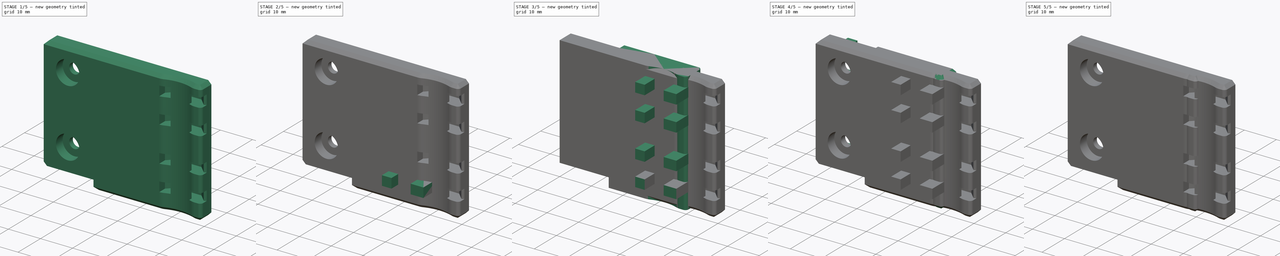
[diagram: build sequence overview — one tinted view per stage of 5, left to right]
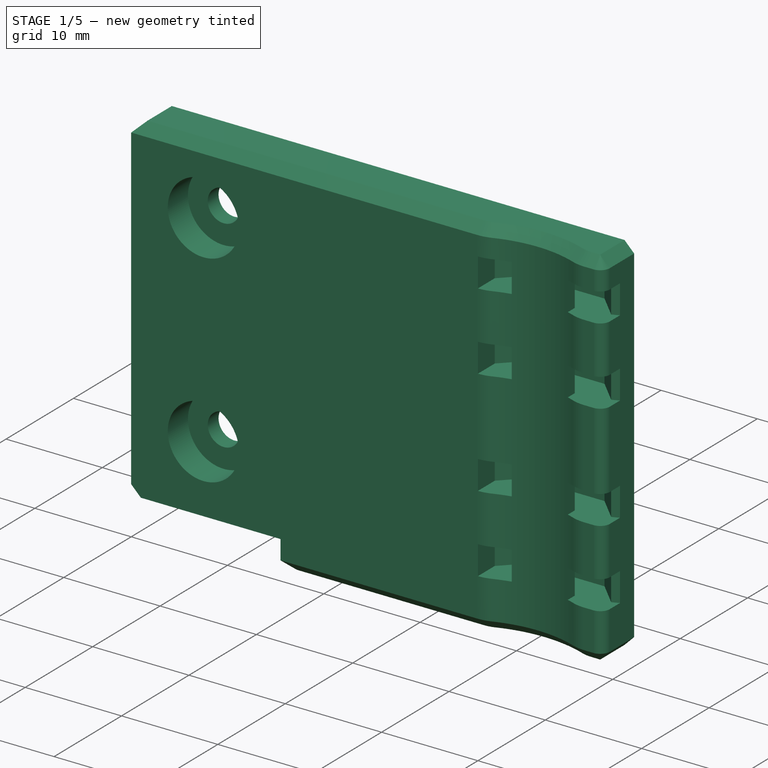
[diagram: stage 1 of 5 — iso view after this stage's code; geometry added in this stage tinted green]
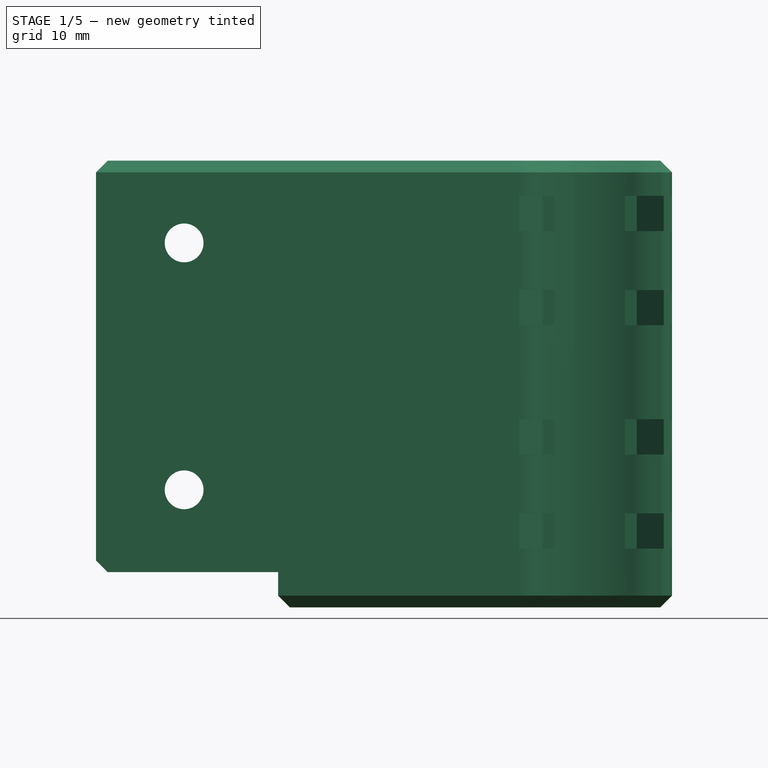
[diagram: stage 1 of 5 — front view after this stage's code; geometry added in this stage tinted green]
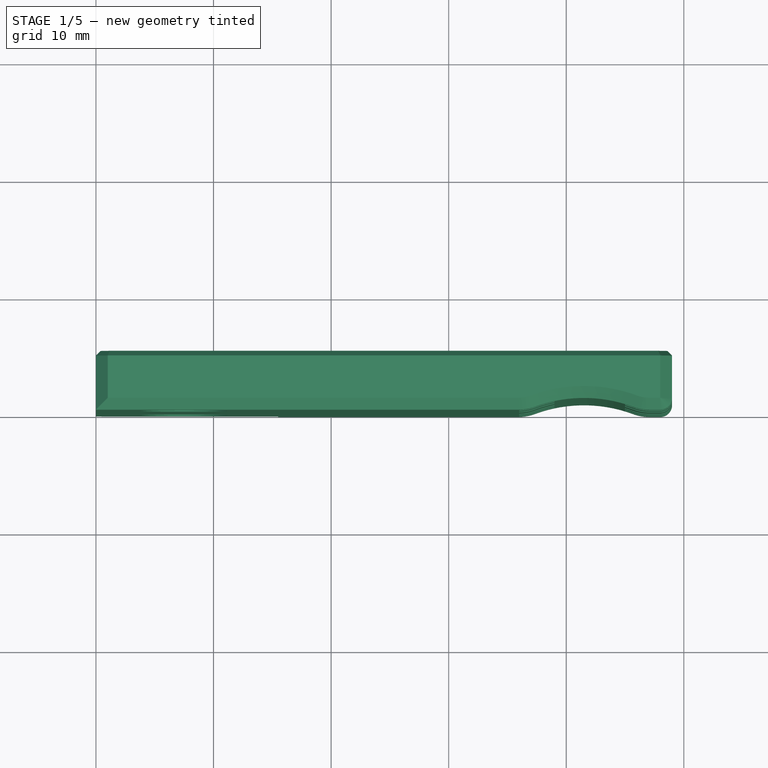
[diagram: stage 1 of 5 — top view after this stage's code; geometry added in this stage tinted green]
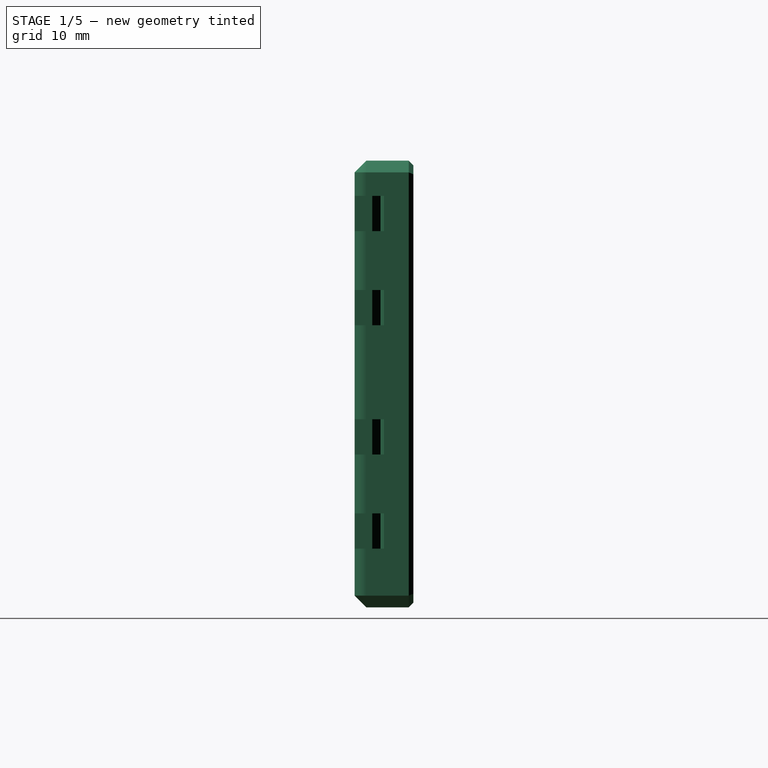
[diagram: stage 1 of 5 — right view after this stage's code; geometry added in this stage tinted green]
FCSTD DOCUMENT  (FreeCAD 0.19R24291 (Git))
Label: bed-cable-holder-1515
License: Other
LicenseURL: GPL3
objects: Sketcher::SketchObject×7, PartDesign::Body×5, PartDesign::Pocket×4, Part::Box×4, Part::Feature×4, PartDesign::Pad×3, PartDesign::Chamfer×3, PartDesign::FeatureBase×3, Part::Cut×3, PartDesign::Fillet×2, Part::MultiFuse×2, Part::Chamfer×2, Part::Refine×2, Part::MultiCommon×2
note: 58 computed .brp shape members not serialized (recipe doc carries the construction recipe); baked Part::Feature solids carry a one-line shape summary decoded from their .brp

FEATURE [Part::Feature] Chamfer003002001
  shape: bbox 40 x 5 x 38 mm, 109 faces (baked)
FEATURE [Part::Box] Box001  label="Cube001"
  AttacherType = Attacher::AttachEngine3D
  Height = 38
  Length = 15
  Placement = pos=(26,-2,0) rot=(0,0,1;0rad)
  Width = 10
FEATURE [Part::Box] Box002  label="Cube002"
  AttacherType = Attacher::AttachEngine3D
  Height = 38
  Length = 9
  Placement = pos=(17,-2,0) rot=(0,0,1;0rad)
  Width = 10
FEATURE [Part::Feature] Chamfer003002002
  shape: bbox 40 x 5 x 38 mm, 109 faces (baked)
FEATURE [Part::Feature] Chamfer003002003
  shape: bbox 40 x 5 x 38 mm, 109 faces (baked)
FEATURE [Part::Box] Box003  label="Cube003"
  AttacherType = Attacher::AttachEngine3D
  Height = 38
  Length = 15
  Placement = pos=(26,-2,0) rot=(0,0,1;0rad)
  Width = 10
FEATURE [Part::MultiCommon] Common
  Placement = pos=(9,0,0) rot=(0,0,1;0rad)
  Shapes = -> [Box001,Chamfer003002001]
FEATURE [Part::MultiCommon] Common001
  Placement = pos=(9,0,0) rot=(0,0,1;0rad)
  Shapes = -> [Box002,Chamfer003002002]
FEATURE [Part::Cut] Cut002
  Base = -> Chamfer003002003
  Tool = -> Box003
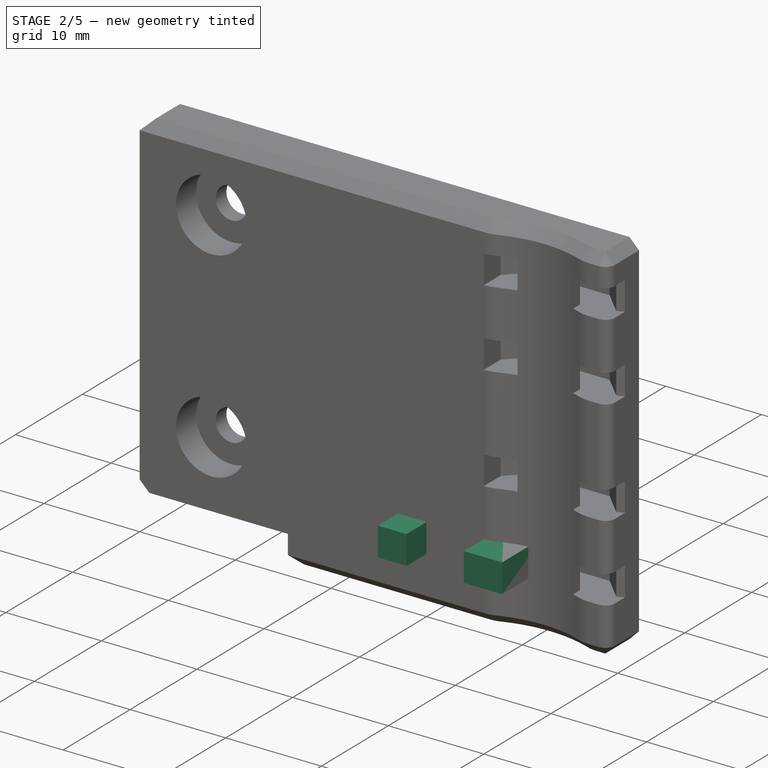
[diagram: stage 2 of 5 — iso view after this stage's code; geometry added in this stage tinted green]
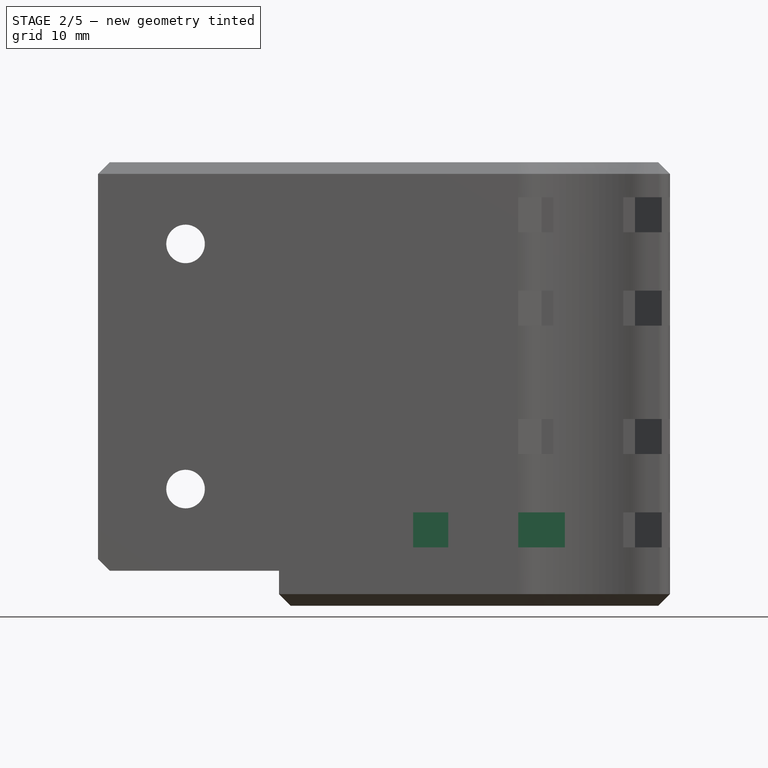
[diagram: stage 2 of 5 — front view after this stage's code; geometry added in this stage tinted green]
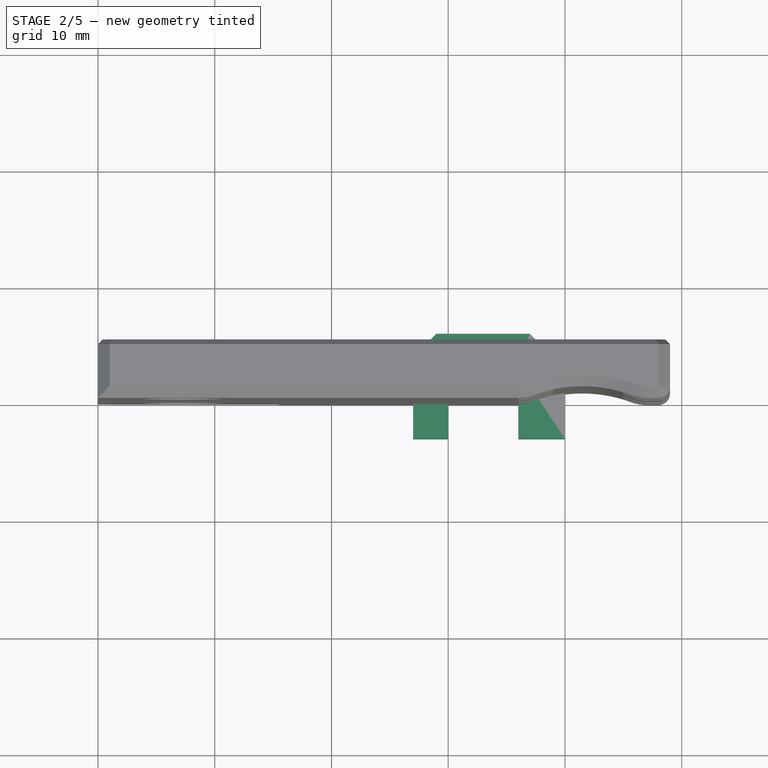
[diagram: stage 2 of 5 — top view after this stage's code; geometry added in this stage tinted green]
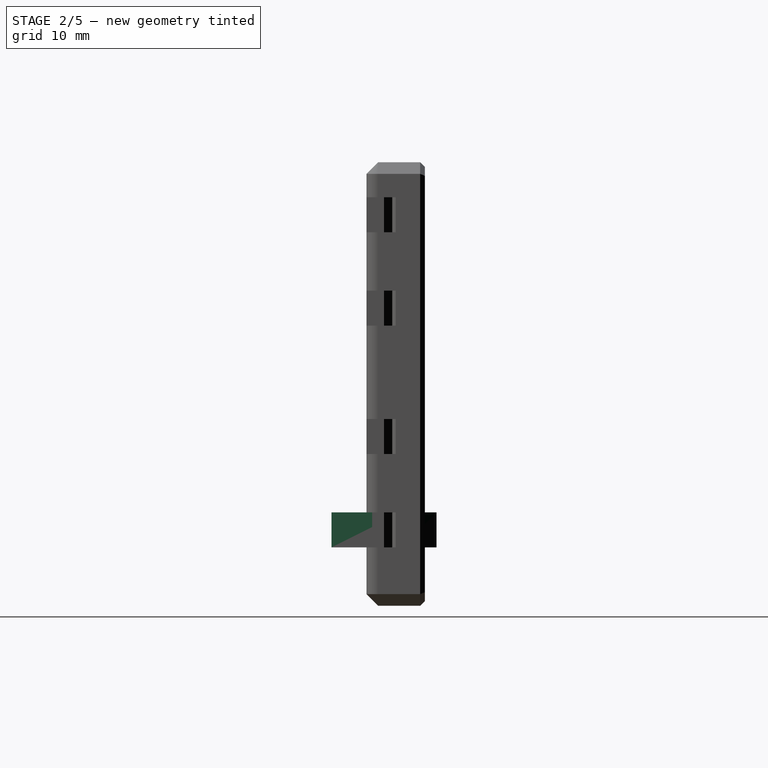
[diagram: stage 2 of 5 — right view after this stage's code; geometry added in this stage tinted green]
FEATURE [PartDesign::Body] Body
  Group = -> [Sketch,Pad,Sketch001,Pocket,Sketch002,Pocket001,Fillet,Fillet001,Sketch003,Pocket002,Sketch004,Pocket003,Chamfer,Chamfer001,Sketch005,Pad001,Chamfer002]
  Origin = -> Origin
  Tip = -> Chamfer002
FEATURE [Sketcher::SketchObject] Sketch006
  FullyConstrained = false
  MapMode = 5
  Support = -> [XY_Plane001]
  sketch-geometry (12):
    g0: LineSegment StartX=27 StartY=-3 StartZ=0 EndX=27 EndY=4 EndZ=0
    g1: LineSegment StartX=27 StartY=4 StartZ=0 EndX=29 EndY=6 EndZ=0
    g2: LineSegment StartX=29 StartY=6 StartZ=0 EndX=37 EndY=6 EndZ=0
    g3: LineSegment StartX=37 StartY=6 StartZ=0 EndX=40 EndY=3 EndZ=0
    g4: LineSegment StartX=40 StartY=3 StartZ=0 EndX=40 EndY=-3 EndZ=0
    g5: LineSegment StartX=40 StartY=-3 StartZ=0 EndX=36 EndY=-3 EndZ=0
    g6: LineSegment StartX=36 StartY=-3 StartZ=0 EndX=36 EndY=3 EndZ=0
    g7: LineSegment StartX=36 StartY=3 StartZ=0 EndX=35 EndY=4 EndZ=0
    g8: LineSegment StartX=35 StartY=4 StartZ=0 EndX=31 EndY=4 EndZ=0
    g9: LineSegment StartX=31 StartY=4 StartZ=0 EndX=30 EndY=3 EndZ=0
    g10: LineSegment StartX=30 StartY=3 StartZ=0 EndX=30 EndY=-3 EndZ=0
    g11: LineSegment StartX=30 StartY=-3 StartZ=0 EndX=27 EndY=-3 EndZ=0
  constraints (20):
    c: Vertical(g0)
    c: Coincident(g0,g1)
    c: Coincident(g1,g2)
    c: Horizontal(g2)
    c: Coincident(g2,g3)
    c: Coincident(g3,g4)
    c: Vertical(g4)
    c: Coincident(g4,g5)
    c: Horizontal(g5)
    c: Coincident(g5,g6)
    c: Vertical(g6)
    c: Coincident(g6,g7)
    c: Coincident(g7,g8)
    c: Horizontal(g8)
    c: Coincident(g8,g9)
    c: Coincident(g9,g10)
    c: Vertical(g10)
    c: Coincident(g10,g11)
    c: Coincident(g11,g0)
    c: Horizontal(g11)
FEATURE [PartDesign::Pad] Pad002
  Direction = (1,1,1)
  Length = 3
  Length2 = 100
  Profile = -> Sketch006
  Type = 0
FEATURE [PartDesign::FeatureBase] Clone
  BaseFeature = -> Body001
  Placement = pos=(0,0,32) rot=(0,0,1;0rad)
FEATURE [PartDesign::Body] Body002
  Group = -> [Clone]
  Origin = -> Origin002
  Placement = pos=(0,0,-8) rot=(0,0,1;0rad)
  Tip = -> Clone
FEATURE [PartDesign::FeatureBase] Clone001
  BaseFeature = -> Body002
  Placement = pos=(0,0,-8) rot=(0,0,1;0rad)
FEATURE [PartDesign::Body] Body003
  Group = -> [Clone001]
  Origin = -> Origin003
  Placement = pos=(0,0,-19) rot=(0,0,1;0rad)
  Tip = -> Clone001
FEATURE [PartDesign::FeatureBase] Clone002
  BaseFeature = -> Body003
  Placement = pos=(0,0,-19) rot=(0,0,1;0rad)
FEATURE [Part::MultiFuse] Fusion001
  Shapes = -> [Cut002,Common001,Common]
FEATURE [Part::Refine] Fusion001001
  Source = -> Fusion001
FEATURE [Part::Feature] Fusion001001001  label="bed-cable-mounter"
  Placement = pos=(0,0,0) rot=(1,0,0;4.71239rad)
  shape: bbox 49 x 38 x 5 mm, 109 faces (baked)
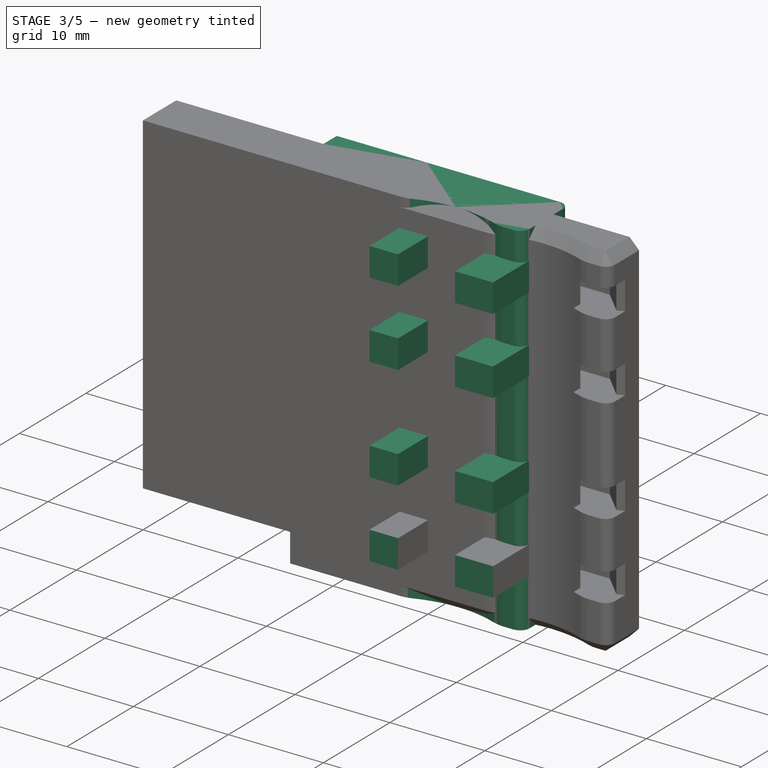
[diagram: stage 3 of 5 — iso view after this stage's code; geometry added in this stage tinted green]
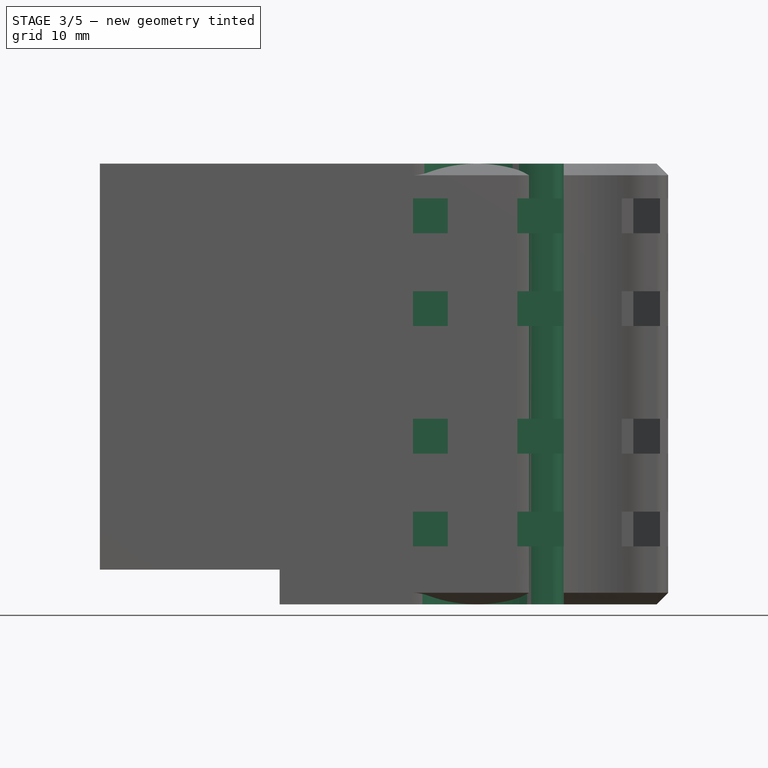
[diagram: stage 3 of 5 — front view after this stage's code; geometry added in this stage tinted green]
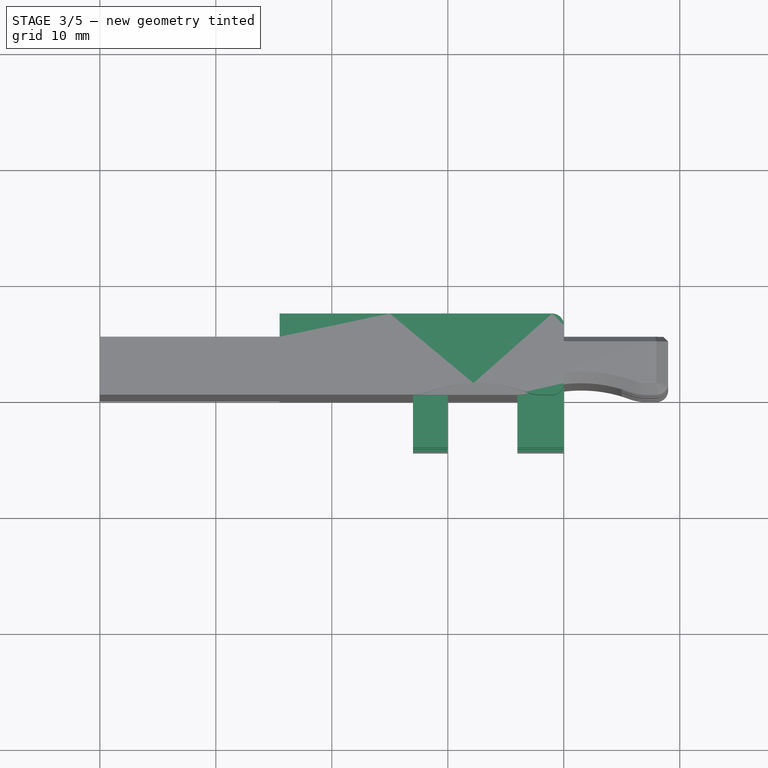
[diagram: stage 3 of 5 — top view after this stage's code; geometry added in this stage tinted green]
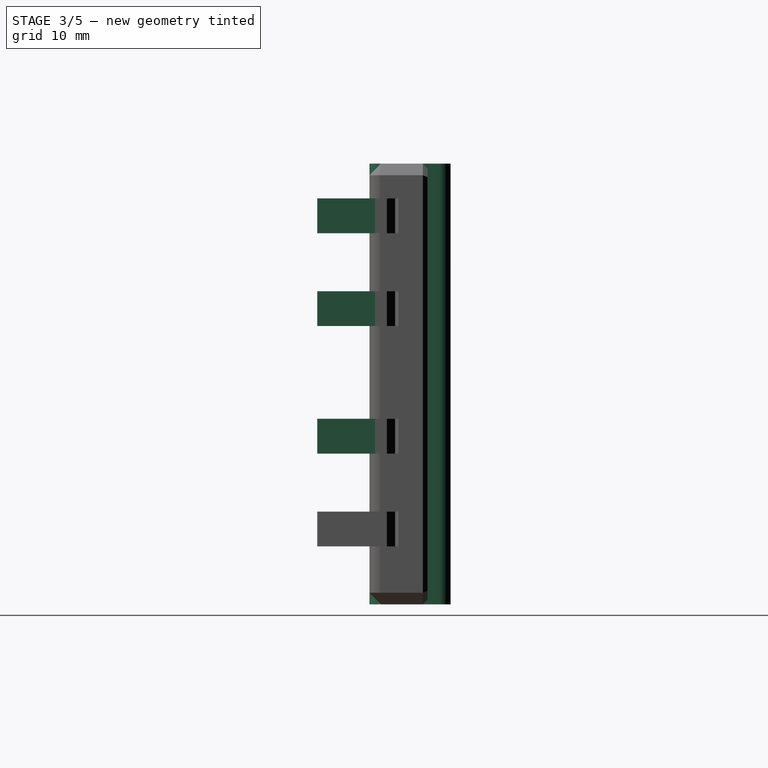
[diagram: stage 3 of 5 — right view after this stage's code; geometry added in this stage tinted green]
FEATURE [Sketcher::SketchObject] Sketch
  FullyConstrained = true
  MapMode = 5
  Support = -> [XY_Plane]
  sketch-geometry (8):
    g0: LineSegment StartX=0 StartY=0 StartZ=0 EndX=0 EndY=5 EndZ=0
    g1: LineSegment StartX=0 StartY=5 StartZ=0 EndX=15.5 EndY=5 EndZ=0
    g2: LineSegment StartX=0 StartY=0 StartZ=0 EndX=25 EndY=0 EndZ=0
    g3: LineSegment StartX=15.5 StartY=5 StartZ=0 EndX=15.5 EndY=7 EndZ=0
    g4: LineSegment StartX=15.5 StartY=7 StartZ=0 EndX=25 EndY=7 EndZ=0
    g5: LineSegment StartX=25 StartY=7 StartZ=0 EndX=40 EndY=7 EndZ=0
    g6: LineSegment StartX=40 StartY=7 StartZ=0 EndX=40 EndY=0 EndZ=0
    g7: LineSegment StartX=25 StartY=0 StartZ=0 EndX=40 EndY=0 EndZ=0
  constraints (23):
    c: Coincident(g-1,g0)
    c: Vertical(g0)
    c: Coincident(g0,g1)
    c: Horizontal(g1)
    c: Coincident(g0,g2)
    c: PointOnObject(g2,g-1)
    c: DistanceX(g1,g1) = 15.5
    c: DistanceY(g0,g0) = 5
    c: DistanceX(g2,g2) = 25
    c: Coincident(g3,g1)
    c: Vertical(g3)
    c: Coincident(g4,g3)
    c: Horizontal(g4)
    c: DistanceX(g4,g4) = 9.5
    c: DistanceY(g3,g3) = 2
    c: Coincident(g5,g4)
    c: Horizontal(g5)
    c: Coincident(g6,g5)
    c: PointOnObject(g6,g-1)
    c: Vertical(g6)
    c: Coincident(g7,g2)
    c: Coincident(g7,g6)
    c: DistanceX(g5,g5) = 15
FEATURE [PartDesign::Pad] Pad
  Direction = (1,1,1)
  Length = 38
  Length2 = 100
  Profile = -> Sketch
  Type = 0
FEATURE [Sketcher::SketchObject] Sketch001
  FullyConstrained = true
  MapMode = 5
  Placement = pos=(0,0,0) rot=(1,0,0;1.5708rad)
  Support = -> [Pad]
  sketch-geometry (4):
    g0: LineSegment StartX=0 StartY=0 StartZ=0 EndX=15.5 EndY=0 EndZ=0
    g1: LineSegment StartX=15.5 StartY=0 StartZ=0 EndX=15.5 EndY=3 EndZ=0
    g2: LineSegment StartX=15.5 StartY=3 StartZ=0 EndX=0 EndY=3 EndZ=0
    g3: LineSegment StartX=0 StartY=3 StartZ=0 EndX=0 EndY=0 EndZ=0
  constraints (11):
    c: Coincident(g0,g1)
    c: Coincident(g1,g2)
    c: Coincident(g2,g3)
    c: Coincident(g3,g0)
    c: Horizontal(g0)
    c: Horizontal(g2)
    c: Vertical(g1)
    c: Vertical(g3)
    c: Coincident(g0,g-1)
    c: DistanceX(g2,g2) = 15.5
    c: DistanceY(g1,g1) = 3
FEATURE [PartDesign::Pocket] Pocket
  BaseFeature = -> Pad
  Length = 5
  Length2 = 100
  Profile = -> Sketch001
  Type = 1
FEATURE [Sketcher::SketchObject] Sketch002
  FullyConstrained = true
  MapMode = 5
  Placement = pos=(0,0,38) rot=(0,0,1;0rad)
  Support = -> [Pocket]
  sketch-geometry (2):
    g0: Circle CenterX=32.5 CenterY=-11 CenterZ=0 NormalX=0 NormalY=0 NormalZ=1 AngleXU=0 Radius=12
    g1: LineSegment StartX=0 StartY=0 StartZ=0 EndX=25 EndY=0 EndZ=0
  constraints (6):
    c: DistanceX(g-1,g0) = 32.5
    c: Coincident(g1,g-1)
    c: PointOnObject(g1,g-1)
    c: DistanceX(g1,g1) = 25
    c: Radius(g0) = 12
    c: DistanceY(g0,g-1) = 11
FEATURE [PartDesign::Pocket] Pocket001
  BaseFeature = -> Pocket
  Length = 5
  Length2 = 100
  Profile = -> Sketch002
  Type = 1
FEATURE [PartDesign::Fillet] Fillet
  Base = -> Pocket001 [Edge26,Edge28]
  BaseFeature = -> Pocket001
  Radius = 4
  SupportTransform = false
FEATURE [PartDesign::Fillet] Fillet001
  Base = -> Fillet [Edge31,Edge34]
  BaseFeature = -> Fillet
  Radius = 1
  SupportTransform = false
FEATURE [PartDesign::Body] Body004
  Group = -> [Clone002]
  Origin = -> Origin004
  Placement = pos=(0,0,8) rot=(0,0,1;0rad)
  Tip = -> Clone002
FEATURE [Part::MultiFuse] Fusion
  Placement = pos=(0,-1.5,0) rot=(0,0,1;0rad)
  Shapes = -> [Body004,Body001,Body002,Body003]
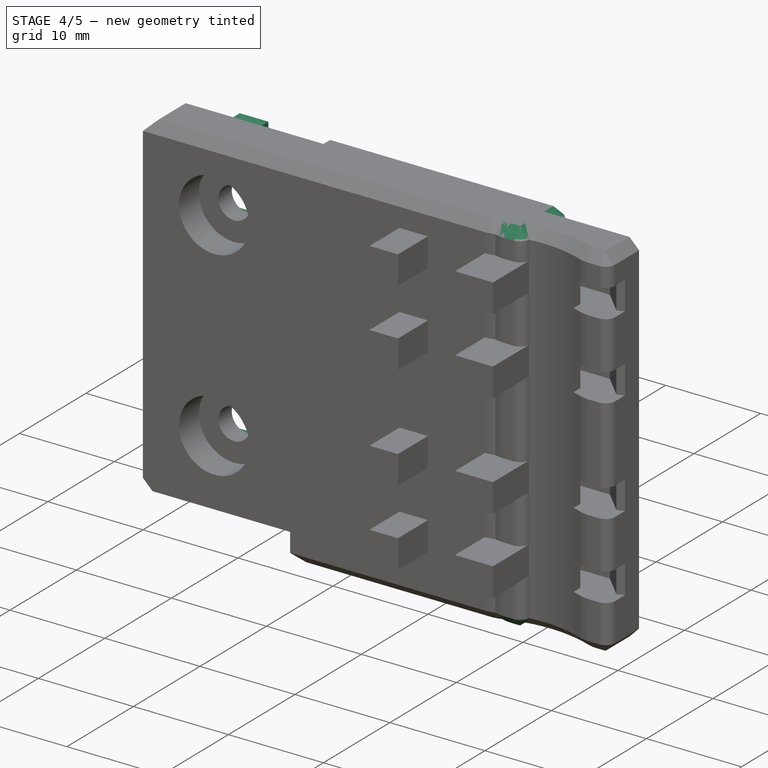
[diagram: stage 4 of 5 — iso view after this stage's code; geometry added in this stage tinted green]
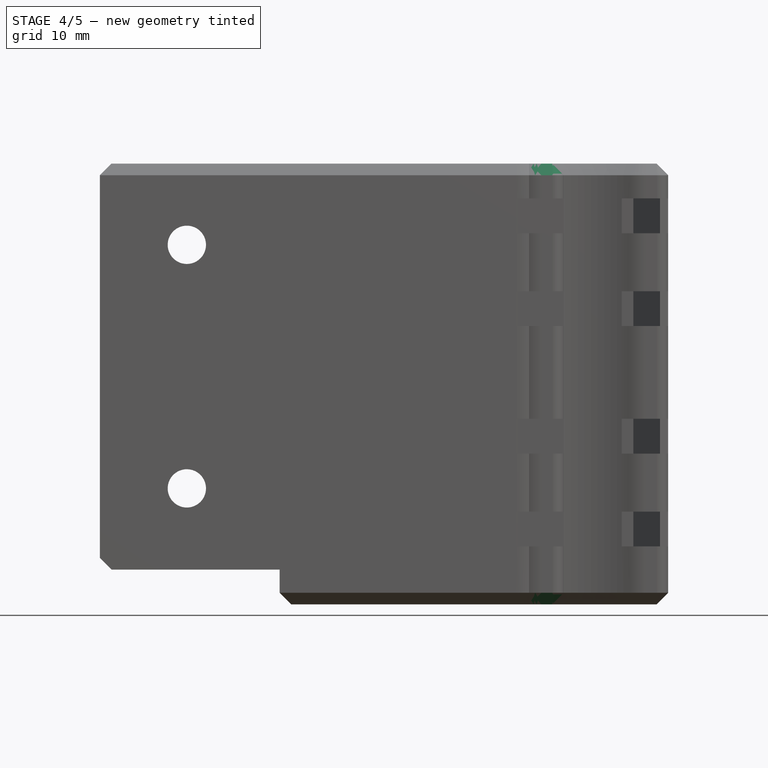
[diagram: stage 4 of 5 — front view after this stage's code; geometry added in this stage tinted green]
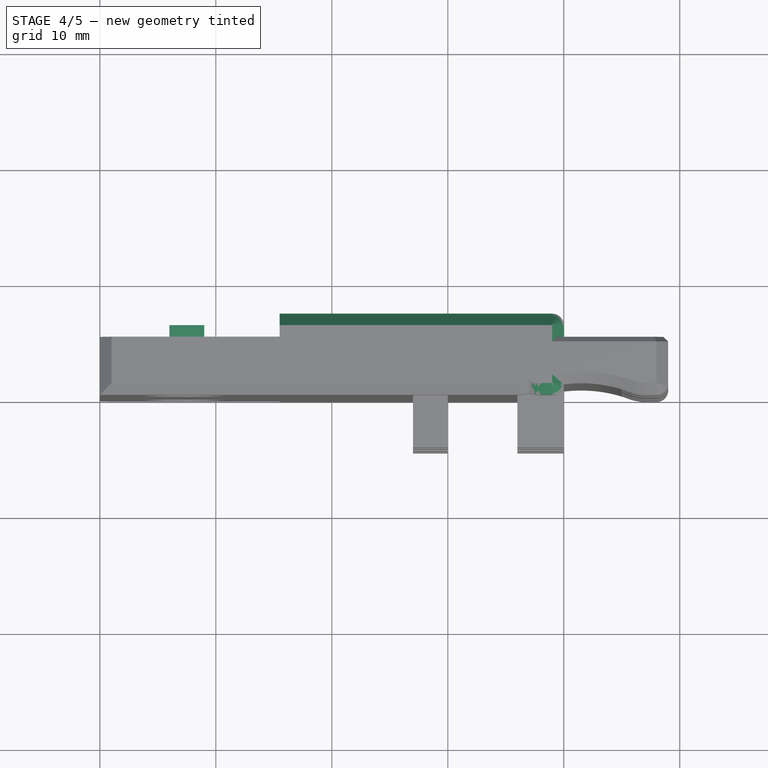
[diagram: stage 4 of 5 — top view after this stage's code; geometry added in this stage tinted green]
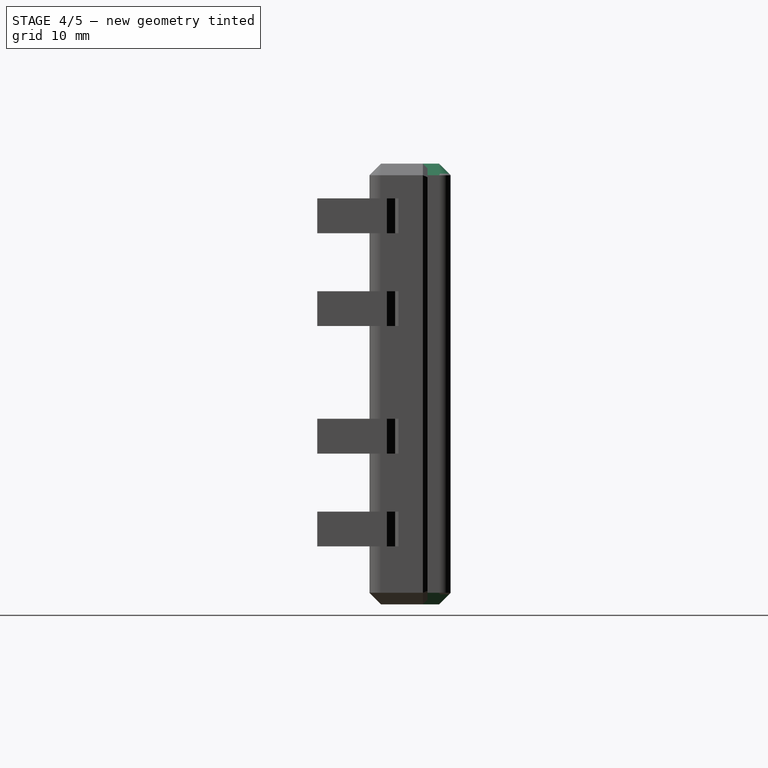
[diagram: stage 4 of 5 — right view after this stage's code; geometry added in this stage tinted green]
FEATURE [Sketcher::SketchObject] Sketch003
  FullyConstrained = true
  MapMode = 5
  Placement = pos=(0,0,0) rot=(1,0,0;1.5708rad)
  Support = -> [Fillet001]
  sketch-geometry (2):
    g0: Circle CenterX=7.5 CenterY=31 CenterZ=0 NormalX=0 NormalY=0 NormalZ=1 AngleXU=0 Radius=1.65
    g1: Circle CenterX=7.5 CenterY=10 CenterZ=0 NormalX=0 NormalY=0 NormalZ=1 AngleXU=0 Radius=1.65
  constraints (6):
    c: DistanceX(g-1,g1) = 7.5
    c: DistanceX(g1,g0) = 0
    c: Radius(g0) = 1.65
    c: Radius(g1) = 1.65
    c: DistanceY(g-1,g1) = 10
    c: DistanceY(g-1,g0) = 31
FEATURE [PartDesign::Pocket] Pocket002
  BaseFeature = -> Fillet001
  Length = 5
  Length2 = 100
  Profile = -> Sketch003
  Type = 1
FEATURE [Sketcher::SketchObject] Sketch004
  FullyConstrained = true
  MapMode = 5
  Placement = pos=(0,0,0) rot=(1,0,0;1.5708rad)
  Support = -> [Pocket002]
  sketch-geometry (2):
    g0: Circle CenterX=7.5 CenterY=31 CenterZ=0 NormalX=0 NormalY=0 NormalZ=1 AngleXU=0 Radius=3.7
    g1: Circle CenterX=7.5 CenterY=10 CenterZ=0 NormalX=0 NormalY=0 NormalZ=1 AngleXU=0 Radius=3.7
  constraints (6):
    c: DistanceX(g0,g1) = 0
    c: DistanceX(g-1,g1) = 7.5
    c: DistanceY(g-1,g1) = 10
    c: DistanceY(g-1,g0) = 31
    c: Radius(g0) = 3.7
    c: Radius(g1) = 3.7
FEATURE [PartDesign::Pocket] Pocket003
  BaseFeature = -> Pocket002
  Length = 3
  Length2 = 100
  Profile = -> Sketch004
  Type = 0
FEATURE [PartDesign::Chamfer] Chamfer
  Angle = 45
  Base = -> Pocket003 [Edge13,Edge45,Edge51]
  BaseFeature = -> Pocket003
  ChamferType = 0
  FlipDirection = false
  Size = 1
  Size2 = 1
  SupportTransform = false
FEATURE [PartDesign::Chamfer] Chamfer001
  Angle = 45
  Base = -> Chamfer [Edge1,Edge40]
  BaseFeature = -> Chamfer
  ChamferType = 0
  FlipDirection = false
  Size = 1
  Size2 = 1
  SupportTransform = false
FEATURE [Sketcher::SketchObject] Sketch005
  FullyConstrained = true
  MapMode = 5
  Placement = pos=(0,5,0) rot=(0,0.707107,0.707107;3.14159rad)
  Support = -> [Chamfer001]
  sketch-geometry (12):
    g0: LineSegment StartX=-9 StartY=38 StartZ=0 EndX=-6 EndY=38 EndZ=0
    g1: LineSegment StartX=-6 StartY=38 StartZ=0 EndX=-6 EndY=33 EndZ=0
    g2: LineSegment StartX=-6 StartY=33 StartZ=0 EndX=-9 EndY=33 EndZ=0
    g3: LineSegment StartX=-9 StartY=33 StartZ=0 EndX=-9 EndY=38 EndZ=0
    g4: LineSegment StartX=-9 StartY=29 StartZ=0 EndX=-6 EndY=29 EndZ=0
    g5: LineSegment StartX=-6 StartY=29 StartZ=0 EndX=-6 EndY=12 EndZ=0
    g6: LineSegment StartX=-6 StartY=12 StartZ=0 EndX=-9 EndY=12 EndZ=0
    g7: LineSegment StartX=-9 StartY=12 StartZ=0 EndX=-9 EndY=29 EndZ=0
    g8: LineSegment StartX=-9 StartY=8 StartZ=0 EndX=-6 EndY=8 EndZ=0
    g9: LineSegment StartX=-6 StartY=8 StartZ=0 EndX=-6 EndY=3 EndZ=0
    g10: LineSegment StartX=-6 StartY=3 StartZ=0 EndX=-9 EndY=3 EndZ=0
    g11: LineSegment StartX=-9 StartY=3 StartZ=0 EndX=-9 EndY=8 EndZ=0
  constraints (36):
    c: Coincident(g0,g1)
    c: Coincident(g1,g2)
    c: Coincident(g2,g3)
    c: Coincident(g3,g0)
    c: Horizontal(g0)
    c: Horizontal(g2)
    c: Vertical(g1)
    c: Vertical(g3)
    c: Coincident(g4,g5)
    c: Coincident(g5,g6)
    c: Coincident(g6,g7)
    c: Coincident(g7,g4)
    c: Horizontal(g4)
    c: Horizontal(g6)
    c: Vertical(g5)
    c: Vertical(g7)
    c: Coincident(g8,g9)
    c: Coincident(g9,g10)
    c: Coincident(g10,g11)
    c: Coincident(g11,g8)
    c: Horizontal(g8)
    c: Horizontal(g10)
    c: Vertical(g9)
    c: Vertical(g11)
    c: DistanceX(g8,g8) = 3
    c: DistanceX(g4,g4) = 3
    c: DistanceX(g0,g0) = 3
    c: DistanceX(g9,g-1) = 6
    c: DistanceX(g5,g8) = 0
    c: DistanceX(g1,g4) = 0
    c: DistanceY(g4,g1) = 4
    c: DistanceY(g8,g5) = 4
    c: DistanceY(g-1,g9) = 3
    c: DistanceY(g11,g11) = 5
    c: DistanceY(g5,g5) = 17
    c: DistanceY(g1,g1) = 5
FEATURE [PartDesign::Pad] Pad001
  BaseFeature = -> Chamfer001
  Direction = (1,1,1)
  Length = 1
  Length2 = 100
  Profile = -> Sketch005
  Type = 0
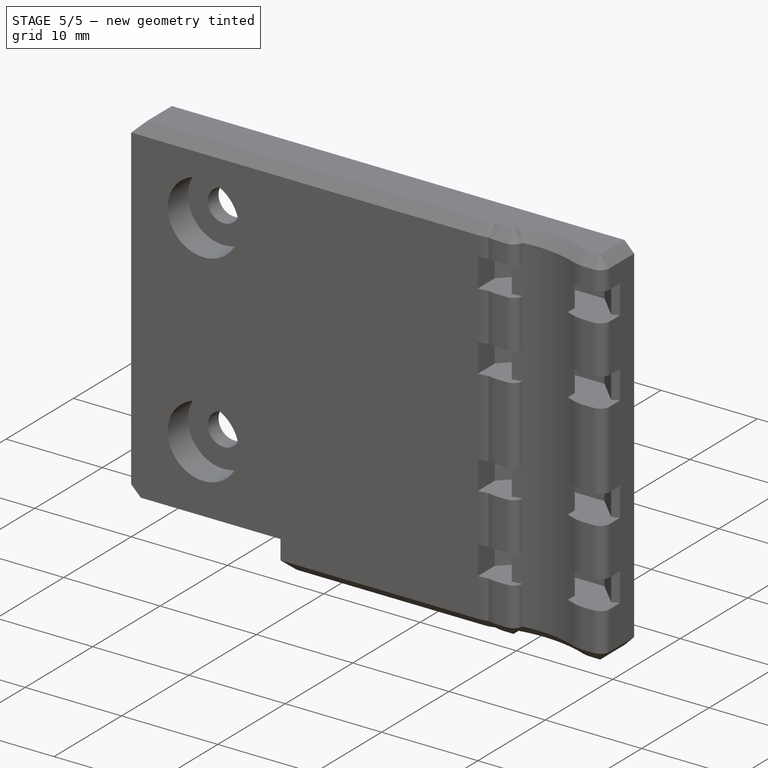
[diagram: stage 5 of 5 — iso view after this stage's code; geometry added in this stage tinted green]
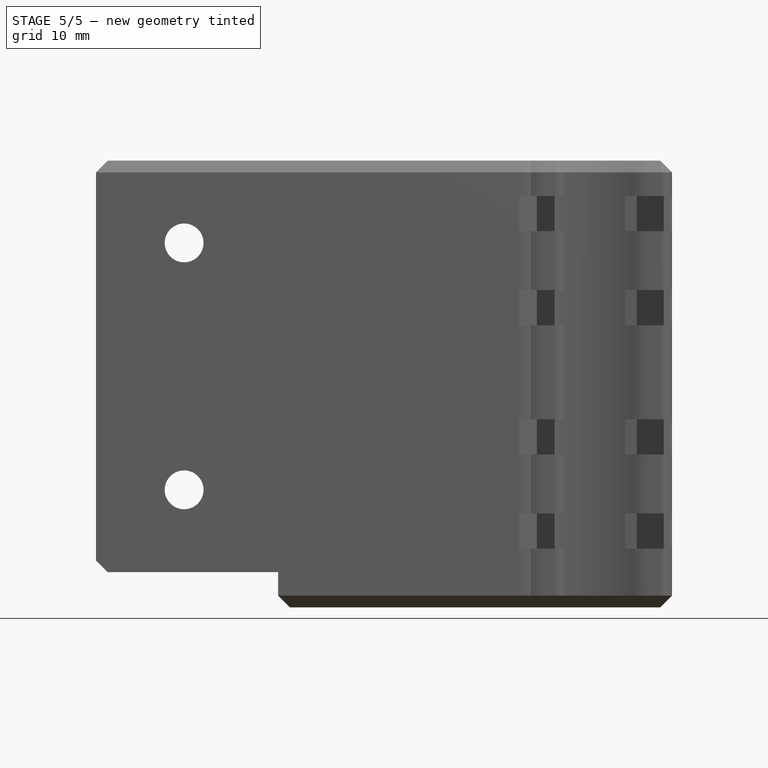
[diagram: stage 5 of 5 — front view after this stage's code; geometry added in this stage tinted green]
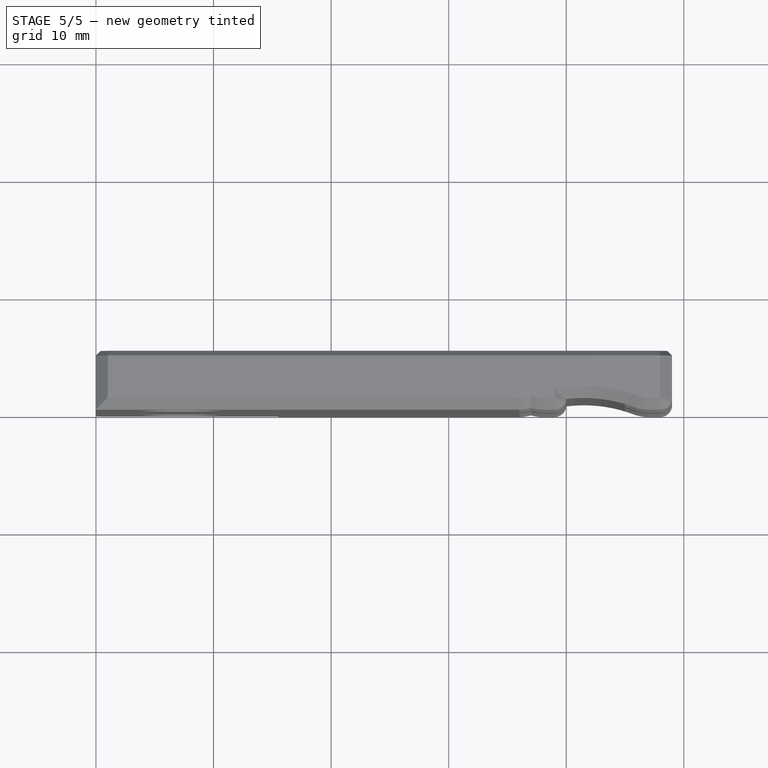
[diagram: stage 5 of 5 — top view after this stage's code; geometry added in this stage tinted green]
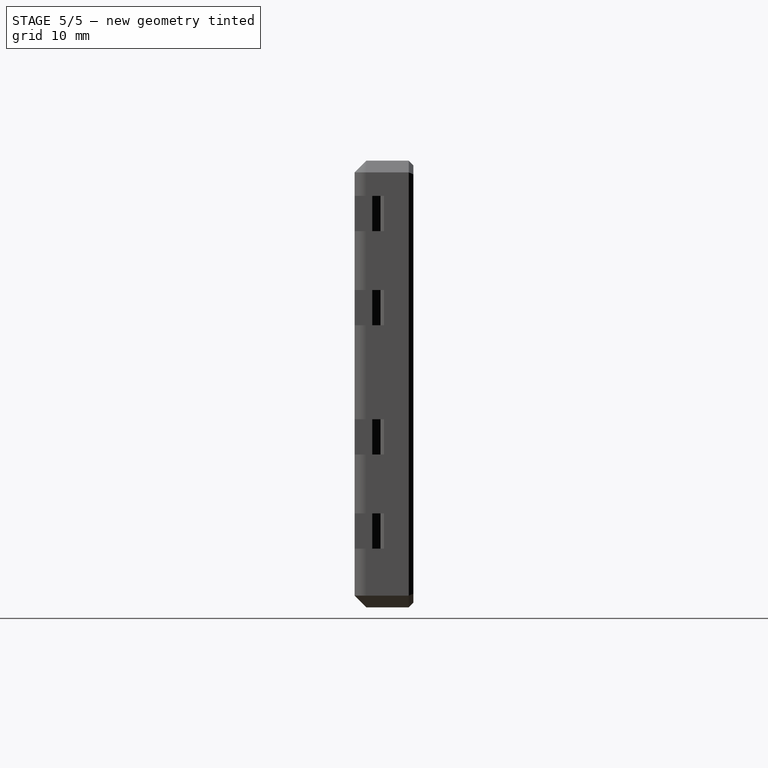
[diagram: stage 5 of 5 — right view after this stage's code; geometry added in this stage tinted green]
FEATURE [PartDesign::Chamfer] Chamfer002
  Angle = 45
  Base = -> Pad001 [Edge93,Edge76,Edge39]
  BaseFeature = -> Pad001
  ChamferType = 0
  FlipDirection = false
  Size = 0.99
  Size2 = 1
  SupportTransform = false
FEATURE [PartDesign::Body] Body001
  Group = -> [Sketch006,Pad002]
  Origin = -> Origin001
  Placement = pos=(0,0,32) rot=(0,0,1;0rad)
  Tip = -> Pad002
FEATURE [Part::Box] Box  label="Cube"
  AttacherType = Attacher::AttachEngine3D
  Height = 38
  Length = 40
  Placement = pos=(0,5,0) rot=(0,0,1;0rad)
  Width = 4
FEATURE [Part::Cut] Cut
  Base = -> Body
  Tool = -> Fusion
FEATURE [Part::Cut] Cut001
  Base = -> Cut
  Tool = -> Box
FEATURE [Part::Chamfer] Chamfer003
  Base = -> Cut001
  Edges = 4 edges r=1: [Edge120,Edge124,Edge128,Edge132]
FEATURE [Part::Refine] Chamfer003001
  Source = -> Chamfer003
FEATURE [Part::Chamfer] Chamfer003002
  Base = -> Chamfer003001
  Edges = 13 edges r=0.4: [Edge4,Edge56,Edge62,Edge212,Edge218,Edge220,Edge224,Edge262,Edge266,Edge268,Edge272,Edge273,Edge274]
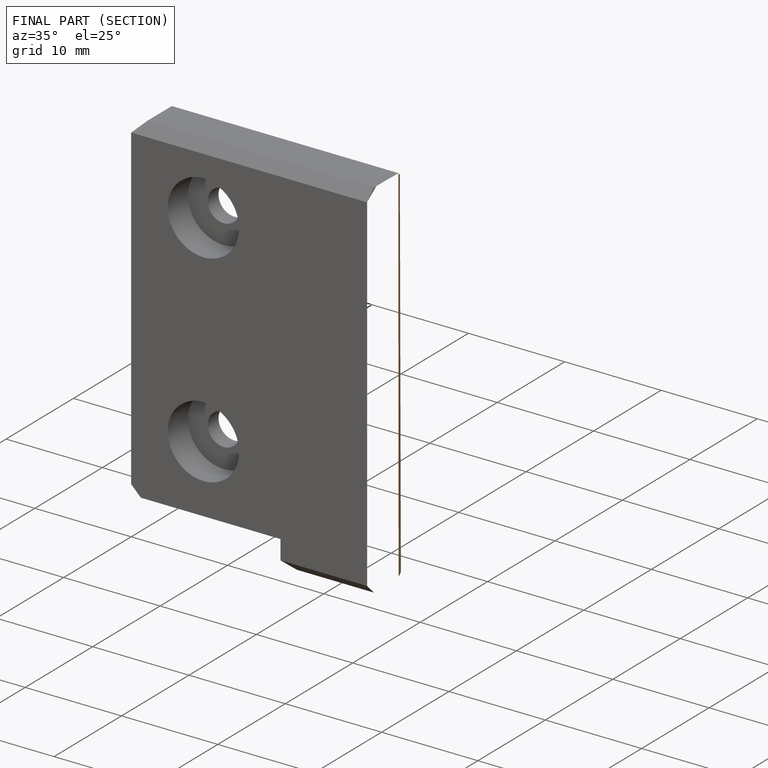
[diagram: finished part — half-section view (interior)]
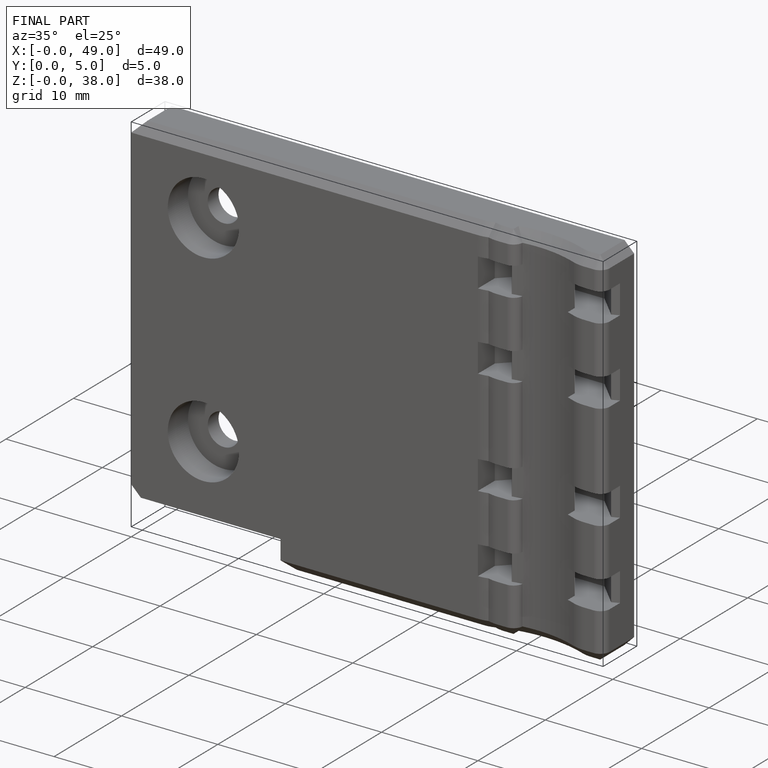
[diagram: finished part — iso view with bounding-box wireframe]
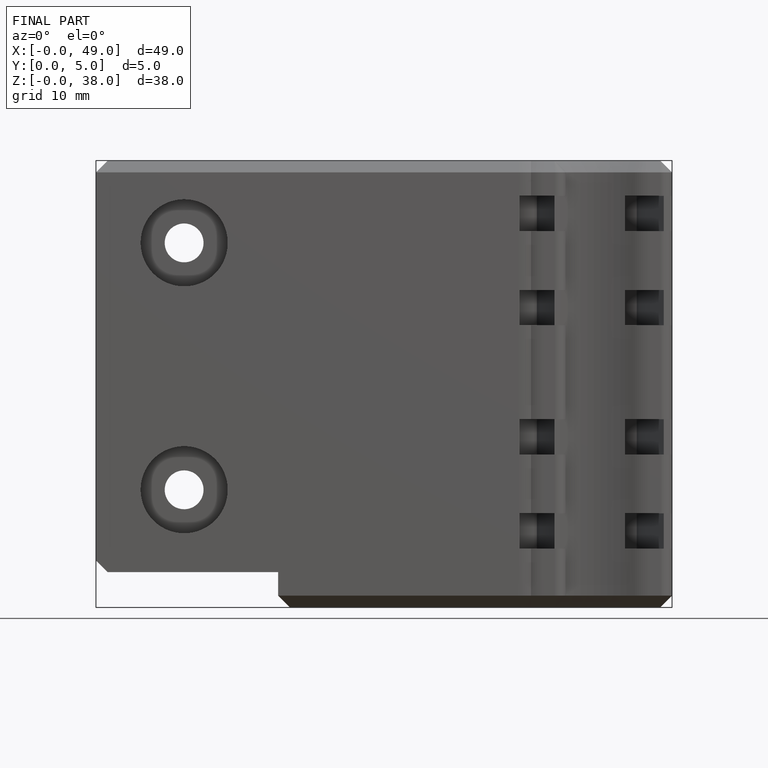
[diagram: finished part — front view with bounding-box wireframe]
